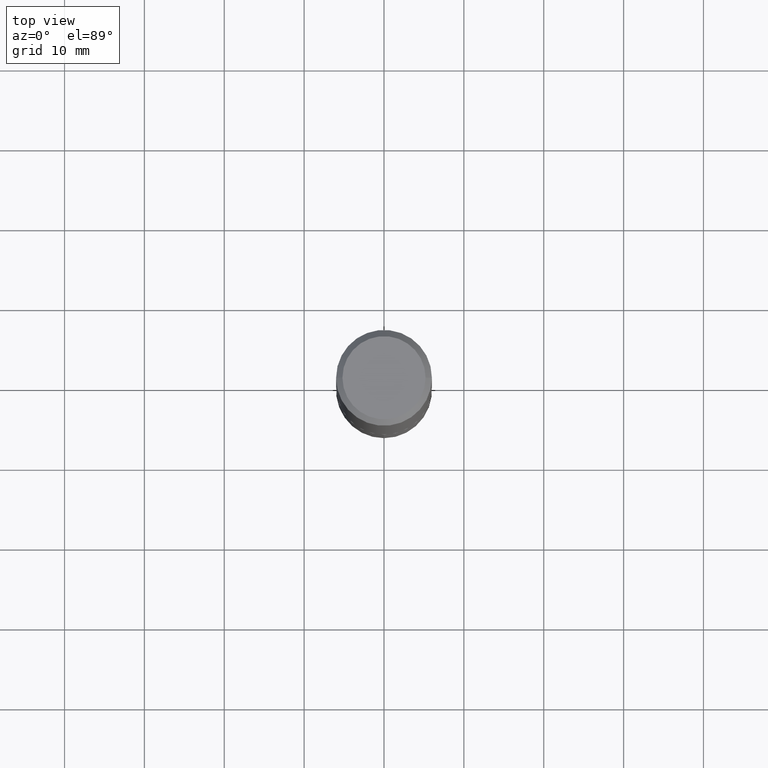
[diagram: clean part render]
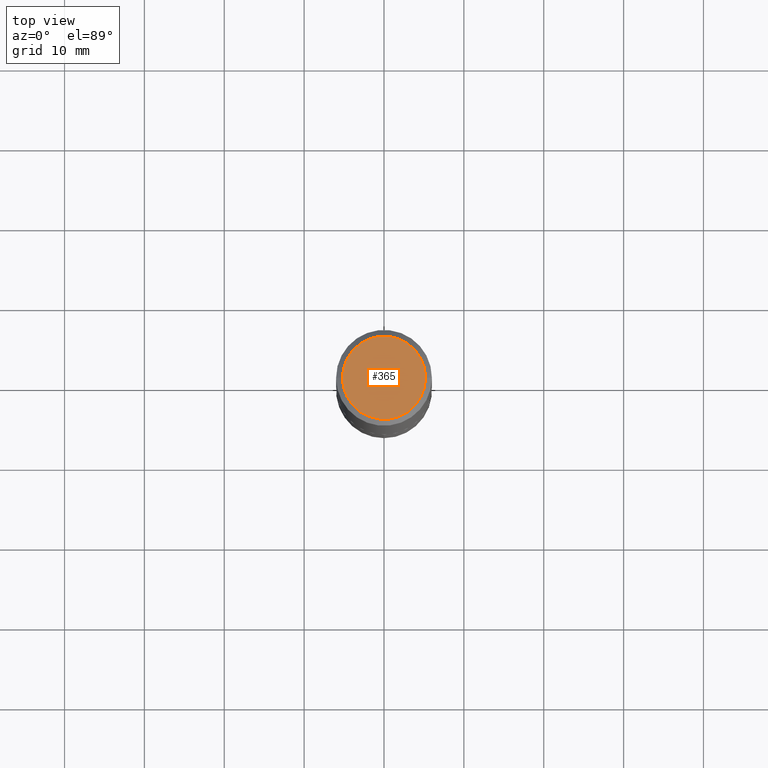
[diagram: same view with one face highlighted and labeled with its STEP entity id]
A machine part, top view. The second image highlights one B-rep face of the part: STEP entity #365.
In plain terms, the highlighted planar face has unit normal (0, -0, -1).
Its self-contained STEP definition (entity closure, byte-faithful):
#23 = EDGE_CURVE ( 'NONE', #197, #127, #275, .T. ) ;
#37 = DIRECTION ( 'NONE',  ( 2.438088387897960049E-29, -3.491481338843145188E-15, -1.000000000000000000 ) ) ;
#54 = CARTESIAN_POINT ( 'NONE',  ( -1.178467787315321149E-46, 1.682539673960460649E-32, 4.818985154644839761E-18 ) ) ;
#69 = EDGE_CURVE ( 'NONE', #127, #197, #242, .T. ) ;
#115 = ORIENTED_EDGE ( 'NONE', *, *, #69, .T. ) ;
#121 = DIRECTION ( 'NONE',  ( -2.445468806185136597E-29, 3.491481338843145583E-15, 1.000000000000000000 ) ) ;
#122 = CARTESIAN_POINT ( 'NONE',  ( 0.2049499999999999933, -1.567808741777880040E-15, 4.818985154655325294E-18 ) ) ;
#127 = VERTEX_POINT ( 'NONE', #122 ) ;
#145 = CARTESIAN_POINT ( 'NONE',  ( -1.178467787315321149E-46, 1.682539673960460649E-32, 4.818985154644839761E-18 ) ) ;
#186 = CARTESIAN_POINT ( 'NONE',  ( -5.892338936576605744E-47, 8.412698369802303245E-33, 2.409492577322419881E-18 ) ) ;
#197 = VERTEX_POINT ( 'NONE', #339 ) ;
#198 = AXIS2_PLACEMENT_3D ( 'NONE', #54, #279, #340 ) ;
#204 = AXIS2_PLACEMENT_3D ( 'NONE', #145, #121, #207 ) ;
#205 = PLANE ( 'NONE',  #269 ) ;
#207 = DIRECTION ( 'NONE',  ( 1.000000000000000000, -6.982962677686266711E-15, 4.876118559169178830E-29 ) ) ;
#237 = ORIENTED_EDGE ( 'NONE', *, *, #23, .T. ) ;
#242 = CIRCLE ( 'NONE', #198, 0.2049499999999999933 ) ;
#256 = EDGE_LOOP ( 'NONE', ( #237, #115 ) ) ;
#269 = AXIS2_PLACEMENT_3D ( 'NONE', #186, #37, #297 ) ;
#275 = CIRCLE ( 'NONE', #204, 0.2049499999999999933 ) ;
#279 = DIRECTION ( 'NONE',  ( -2.445468806185136597E-29, 3.491481338843145583E-15, 1.000000000000000000 ) ) ;
#297 = DIRECTION ( 'NONE',  ( -1.000000000000000000, 6.982962677686265922E-15, -4.876176775795935793E-29 ) ) ;
#339 = CARTESIAN_POINT ( 'NONE',  ( -0.2049499999999999933, 1.485712596711223663E-15, 4.818985154634640807E-18 ) ) ;
#340 = DIRECTION ( 'NONE',  ( 1.000000000000000000, -6.982962677686266711E-15, 4.876118559169178830E-29 ) ) ;
#357 = FACE_OUTER_BOUND ( 'NONE', #256, .T. ) ;
#365 = ADVANCED_FACE ( 'NONE', ( #357 ), #205, .F. ) ;